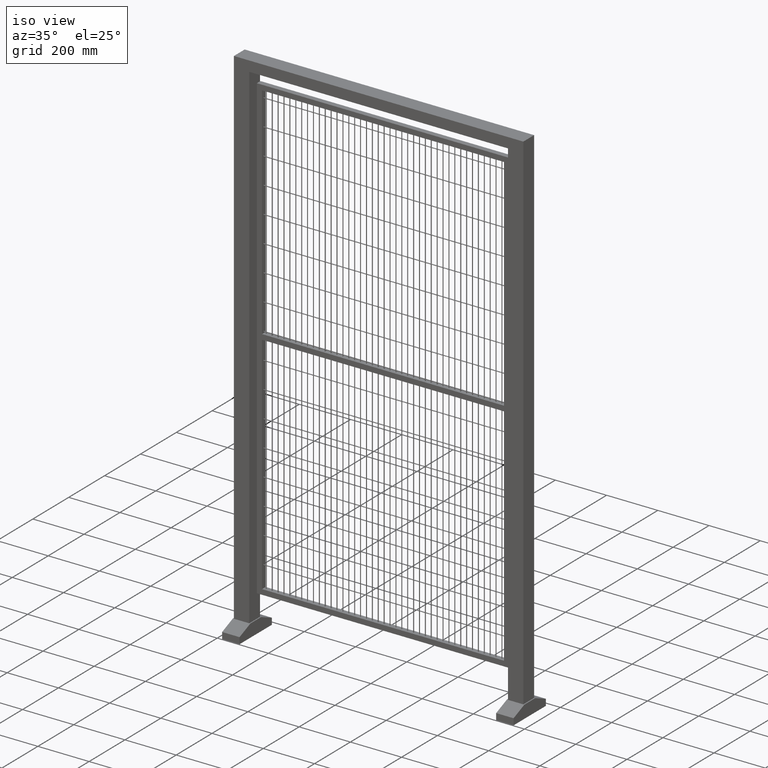
[diagram: clean part render]
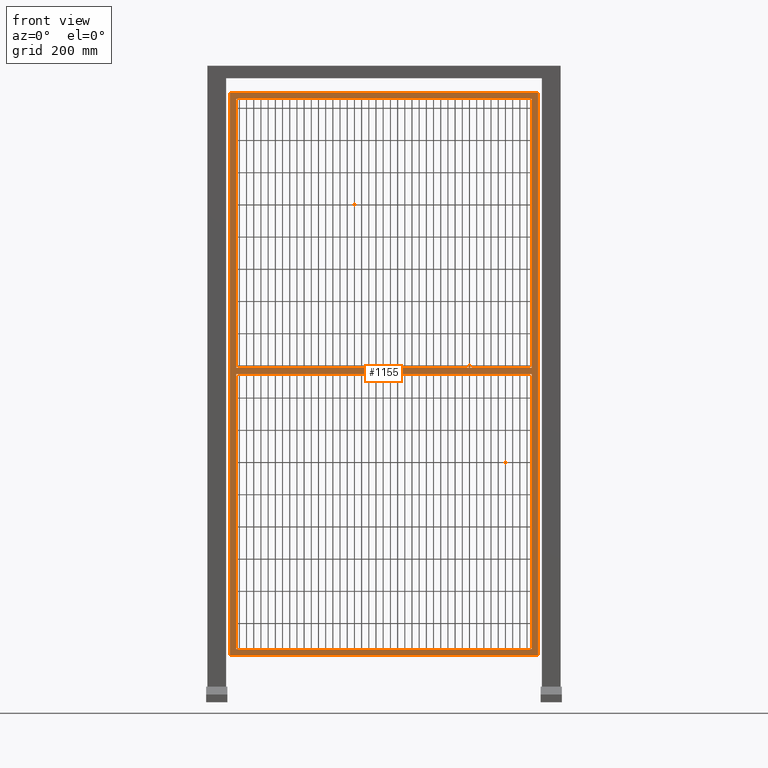
[diagram: tour spotlight — one face highlighted and labeled with its STEP entity id]
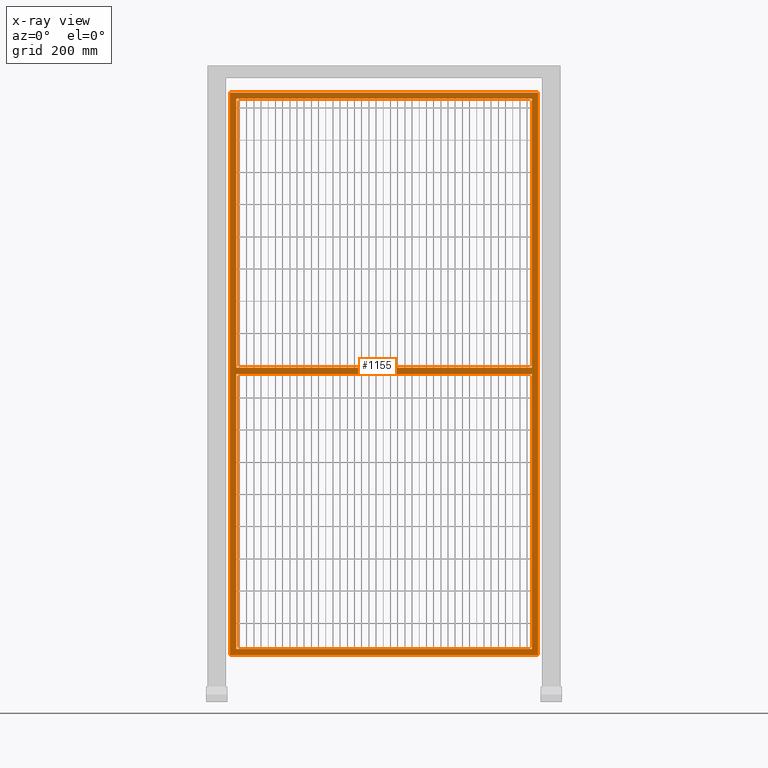
[diagram: x-ray of the same camera — body ghosted, this tour face saturated]
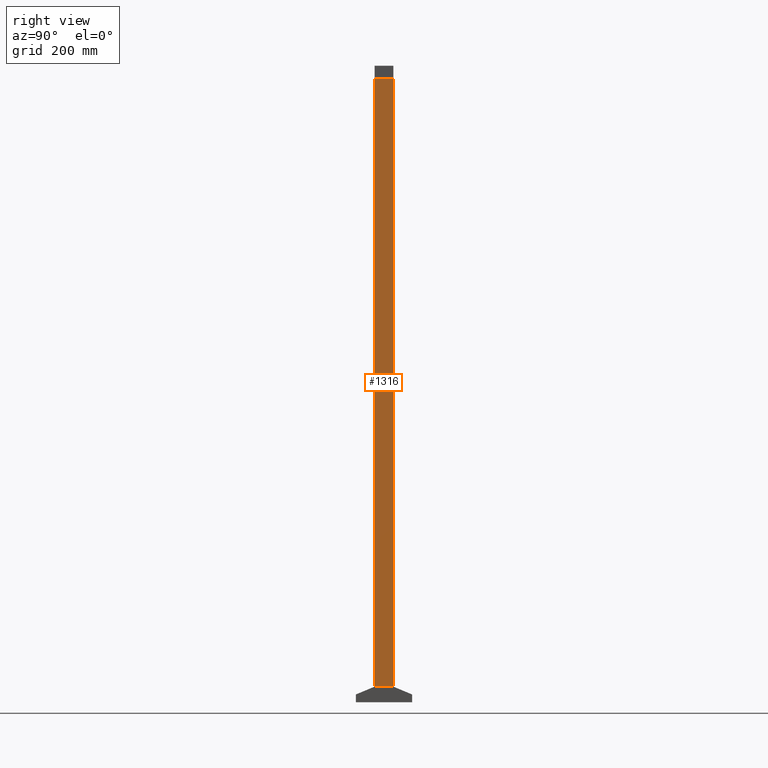
[diagram: tour spotlight — one face highlighted and labeled with its STEP entity id]
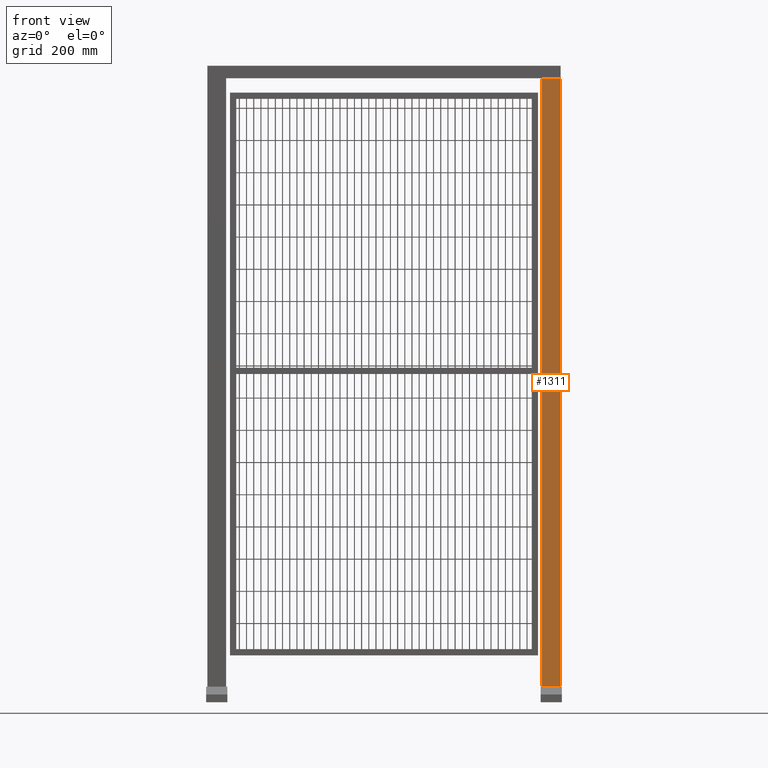
[diagram: tour spotlight — one face highlighted and labeled with its STEP entity id]
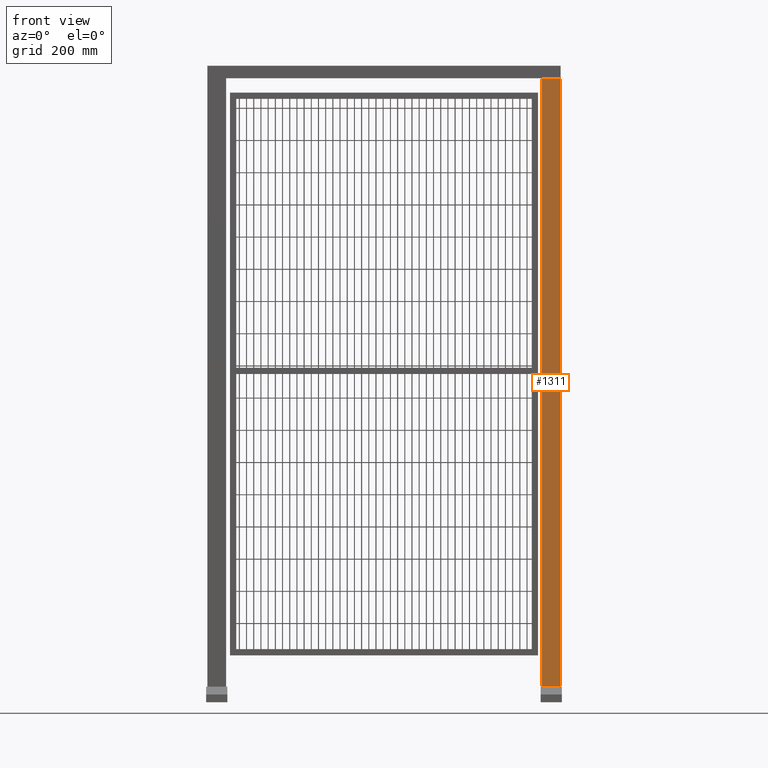
[diagram: tour spotlight — one face highlighted and labeled with its STEP entity id]
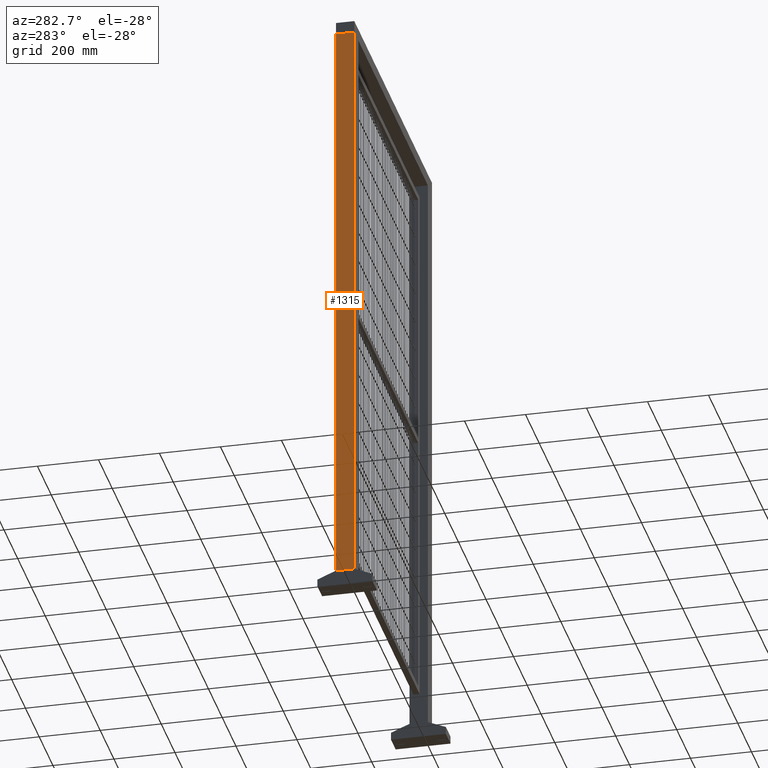
[diagram: tour spotlight — one face highlighted and labeled with its STEP entity id]
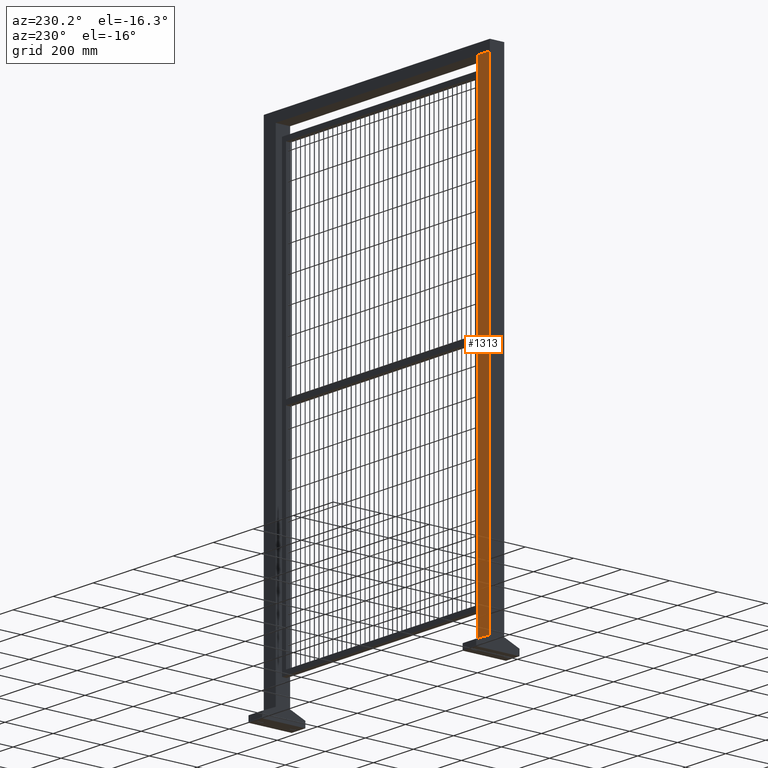
[diagram: tour spotlight — one face highlighted and labeled with its STEP entity id]
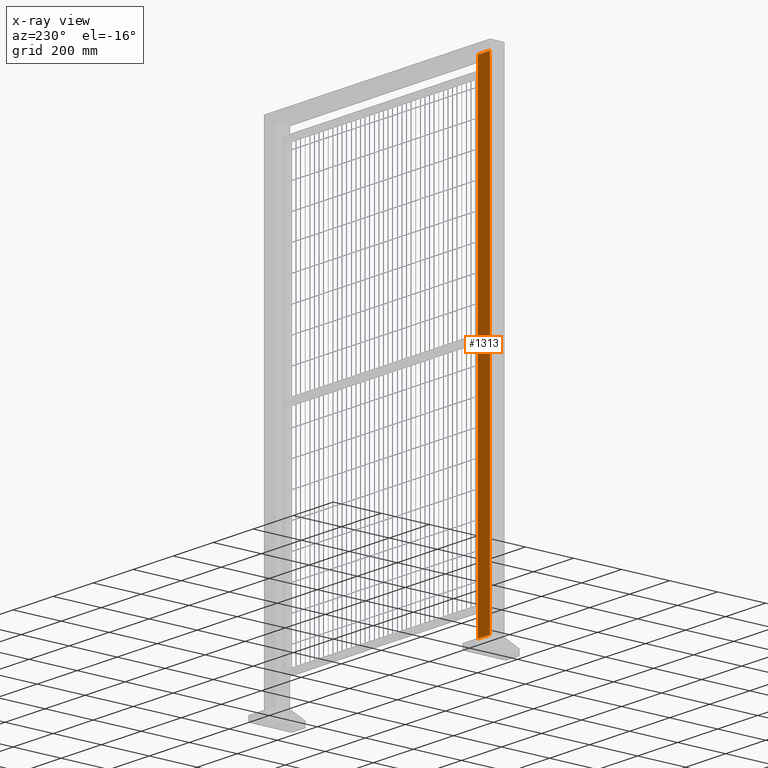
[diagram: x-ray of the same camera — body ghosted, this tour face saturated]
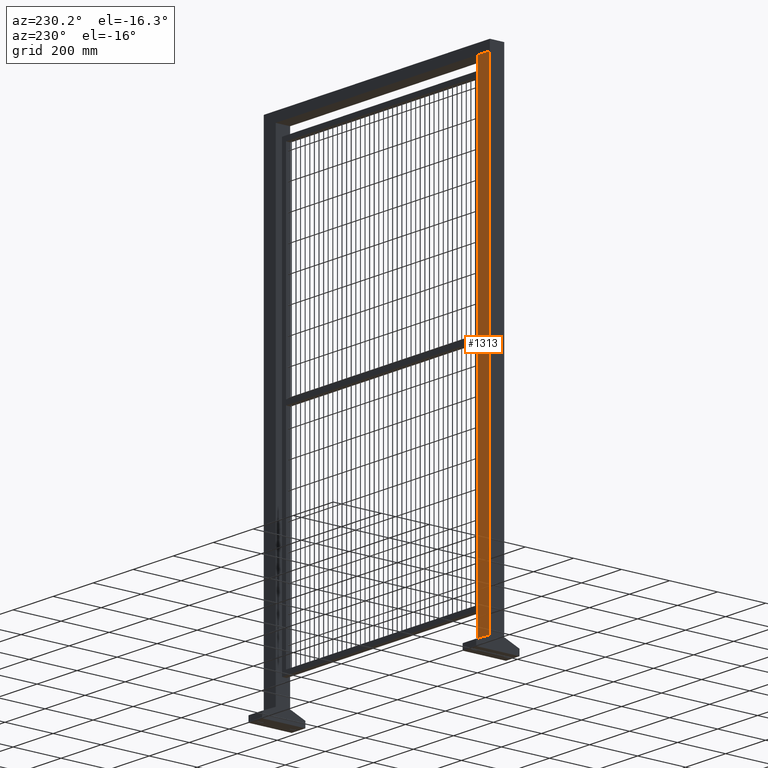
[diagram: tour spotlight — one face highlighted and labeled with its STEP entity id]
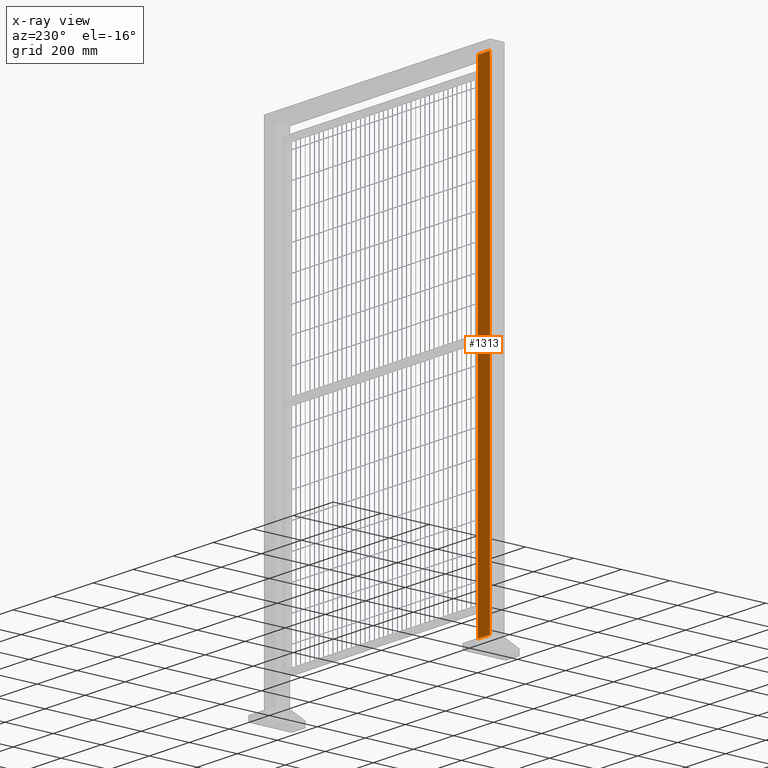
[diagram: x-ray of the same camera — body ghosted, this tour face saturated]
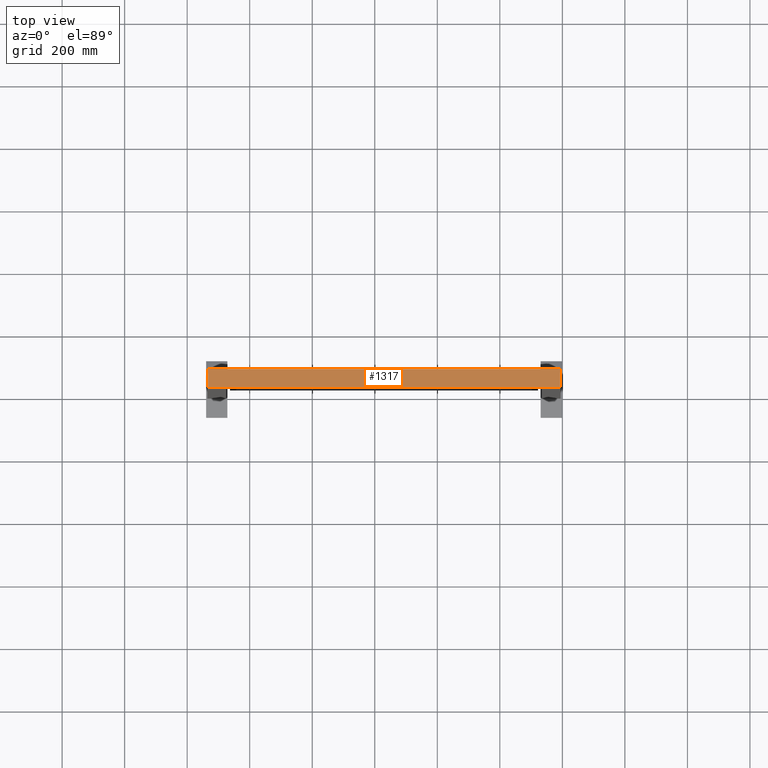
[diagram: tour spotlight — one face highlighted and labeled with its STEP entity id]
A machine part: a face-by-face anatomy tour. The part has 240 B-rep faces; the first image is the clean iso view, then the 8 largest visible faces are spotlighted one at a time (largest first), each with its STEP entity span.

Face 1 — front view, entity #1155. An x-ray twin of the same camera follows (body ghosted, this face saturated) — the face is partly hidden behind the body. In plain terms, the highlighted planar face has unit normal (0, -1, 0).
Definition (entity closure, byte-faithful):
#74=LINE('',#4026,#168);
#78=LINE('',#4035,#172);
#84=LINE('',#4058,#178);
#87=LINE('',#4066,#181);
#89=LINE('',#4073,#183);
#92=LINE('',#4079,#186);
#96=LINE('',#4087,#190);
#100=LINE('',#4095,#194);
#103=LINE('',#4101,#197);
#105=LINE('',#4104,#199);
#106=LINE('',#4106,#200);
#107=LINE('',#4107,#201);
#168=VECTOR('',#3271,1.);
#172=VECTOR('',#3277,1.);
#178=VECTOR('',#3297,1.);
#181=VECTOR('',#3304,1.);
#183=VECTOR('',#3310,1.);
#186=VECTOR('',#3315,1.);
#190=VECTOR('',#3321,1.);
#194=VECTOR('',#3327,1.);
#197=VECTOR('',#3332,1.);
#199=VECTOR('',#3336,1.);
#200=VECTOR('',#3339,1.);
#201=VECTOR('',#3340,1.);
#840=PLANE('',#2879);
#1155=ADVANCED_FACE('',(#1421,#1422,#1423),#840,.T.);
#1421=FACE_BOUND('',#1594,.T.);
#1422=FACE_BOUND('',#1595,.T.);
#1423=FACE_BOUND('',#1596,.T.);
#1594=EDGE_LOOP('',(#1914,#1915,#1916,#1917));
#1595=EDGE_LOOP('',(#1918,#1919,#1920,#1921));
#1596=EDGE_LOOP('',(#1922,#1923,#1924,#1925));
#1914=ORIENTED_EDGE('',*,*,#2512,.F.);
#1915=ORIENTED_EDGE('',*,*,#2474,.F.);
#1916=ORIENTED_EDGE('',*,*,#2488,.F.);
#1917=ORIENTED_EDGE('',*,*,#2498,.F.);
#1918=ORIENTED_EDGE('',*,*,#2502,.T.);
#1919=ORIENTED_EDGE('',*,*,#2506,.T.);
#1920=ORIENTED_EDGE('',*,*,#2509,.T.);
#1921=ORIENTED_EDGE('',*,*,#2511,.T.);
#1922=ORIENTED_EDGE('',*,*,#2495,.F.);
#1923=ORIENTED_EDGE('',*,*,#2513,.F.);
#1924=ORIENTED_EDGE('',*,*,#2478,.F.);
#1925=ORIENTED_EDGE('',*,*,#2492,.F.);
#2286=VERTEX_POINT('',#4027);
#2287=VERTEX_POINT('',#4028);
#2290=VERTEX_POINT('',#4036);
#2291=VERTEX_POINT('',#4037);
#2299=VERTEX_POINT('',#4057);
#2302=VERTEX_POINT('',#4065);
#2304=VERTEX_POINT('',#4071);
#2306=VERTEX_POINT('',#4077);
#2310=VERTEX_POINT('',#4086);
#2311=VERTEX_POINT('',#4088);
#2313=VERTEX_POINT('',#4094);
#2315=VERTEX_POINT('',#4100);
#2474=EDGE_CURVE('',#2286,#2287,#74,.T.);
#2478=EDGE_CURVE('',#2290,#2291,#78,.T.);
#2488=EDGE_CURVE('',#2299,#2286,#84,.T.);
#2492=EDGE_CURVE('',#2302,#2290,#87,.T.);
#2495=EDGE_CURVE('',#2304,#2302,#89,.T.);
#2498=EDGE_CURVE('',#2306,#2299,#92,.T.);
#2502=EDGE_CURVE('',#2311,#2310,#96,.T.);
#2506=EDGE_CURVE('',#2310,#2313,#100,.T.);
#2509=EDGE_CURVE('',#2313,#2315,#103,.T.);
#2511=EDGE_CURVE('',#2315,#2311,#105,.T.);
#2512=EDGE_CURVE('',#2287,#2306,#106,.T.);
#2513=EDGE_CURVE('',#2291,#2304,#107,.T.);
#2879=AXIS2_PLACEMENT_3D('',#4108,#3341,#3342);
#3271=DIRECTION('',(-6.30808536718839E-17,0.,1.));
#3277=DIRECTION('',(-6.30808536718839E-17,0.,-1.));
#3297=DIRECTION('',(1.,0.,-2.34967835899504E-16));
#3304=DIRECTION('',(-1.,0.,0.));
#3310=DIRECTION('',(-6.30808536718839E-17,0.,1.));
#3315=DIRECTION('',(-6.30808536718839E-17,0.,-1.));
#3321=DIRECTION('',(0.,0.,1.));
#3327=DIRECTION('',(-1.,0.,0.));
#3332=DIRECTION('',(0.,0.,-1.));
#3336=DIRECTION('',(1.,0.,0.));
#3339=DIRECTION('',(-1.,0.,0.));
#3340=DIRECTION('',(1.,0.,0.));
#3341=DIRECTION('',(0.,-1.,0.));
#3342=DIRECTION('',(0.,0.,-1.));
#4026=CARTESIAN_POINT('',(472.5,-10.,-880.));
#4027=CARTESIAN_POINT('',(472.5,-10.,-880.));
#4028=CARTESIAN_POINT('',(472.5,-10.,4.38892109655965E-15));
#4035=CARTESIAN_POINT('',(-472.5,-10.,880.));
#4036=CARTESIAN_POINT('',(-472.5,-10.,880.));
#4037=CARTESIAN_POINT('',(-472.5,-10.,20.));
#4057=CARTESIAN_POINT('',(-472.5,-10.,-880.));
#4058=CARTESIAN_POINT('',(-472.5,-10.,-880.));
#4065=CARTESIAN_POINT('',(472.5,-10.,880.));
#4066=CARTESIAN_POINT('',(472.5,-10.,880.));
#4071=CARTESIAN_POINT('',(472.5,-10.,20.));
#4073=CARTESIAN_POINT('',(472.5,-10.,-880.));
#4077=CARTESIAN_POINT('',(-472.5,-10.,4.38892109655965E-15));
#4079=CARTESIAN_POINT('',(-472.5,-10.,880.));
#4086=CARTESIAN_POINT('',(492.5,-10.,900.));
#4087=CARTESIAN_POINT('',(492.5,-10.,-900.));
#4088=CARTESIAN_POINT('',(492.5,-10.,-900.));
#4094=CARTESIAN_POINT('',(-492.5,-10.,900.));
#4095=CARTESIAN_POINT('',(492.5,-10.,900.));
#4100=CARTESIAN_POINT('',(-492.5,-10.,-900.));
#4101=CARTESIAN_POINT('',(-492.5,-10.,900.));
#4104=CARTESIAN_POINT('',(-492.5,-10.,-900.));
#4106=CARTESIAN_POINT('',(472.5,-10.,4.38892109655965E-15));
#4107=CARTESIAN_POINT('',(-472.5,-10.,20.));
#4108=CARTESIAN_POINT('',(0.,-10.,0.));

Face 2 — right view, entity #1316. In plain terms, the highlighted planar face has unit normal (1, 0, 0).
Definition (entity closure, byte-faithful):
#144=LINE('',#4516,#238);
#148=LINE('',#4525,#242);
#151=LINE('',#4531,#245);
#154=LINE('',#4537,#248);
#238=VECTOR('',#3885,1.);
#242=VECTOR('',#3891,1.);
#245=VECTOR('',#3896,1.);
#248=VECTOR('',#3901,1.);
#951=PLANE('',#3138);
#1100=FACE_OUTER_BOUND('',#1811,.T.);
#1316=ADVANCED_FACE('',(#1100),#951,.T.);
#1811=EDGE_LOOP('',(#2234,#2235,#2236,#2237));
#2234=ORIENTED_EDGE('',*,*,#2648,.T.);
#2235=ORIENTED_EDGE('',*,*,#2652,.T.);
#2236=ORIENTED_EDGE('',*,*,#2655,.T.);
#2237=ORIENTED_EDGE('',*,*,#2658,.T.);
#2434=VERTEX_POINT('',#4517);
#2435=VERTEX_POINT('',#4518);
#2438=VERTEX_POINT('',#4526);
#2440=VERTEX_POINT('',#4532);
#2648=EDGE_CURVE('',#2434,#2435,#144,.T.);
#2652=EDGE_CURVE('',#2435,#2438,#148,.T.);
#2655=EDGE_CURVE('',#2438,#2440,#151,.T.);
#2658=EDGE_CURVE('',#2440,#2434,#154,.T.);
#3138=AXIS2_PLACEMENT_3D('',#4541,#3907,#3908);
#3885=DIRECTION('',(0.,0.,-1.));
#3891=DIRECTION('',(-1.,0.,0.));
#3896=DIRECTION('',(1.78286071528963E-18,0.,1.));
#3901=DIRECTION('',(1.,0.,0.));
#3907=DIRECTION('',(0.,1.,0.));
#3908=DIRECTION('',(0.,0.,1.));
#4516=CARTESIAN_POINT('',(30.,30.,1996.));
#4517=CARTESIAN_POINT('',(30.,30.,1996.));
#4518=CARTESIAN_POINT('',(30.,30.,50.));
#4525=CARTESIAN_POINT('',(30.,30.,50.));
#4526=CARTESIAN_POINT('',(-30.,30.,50.));
#4531=CARTESIAN_POINT('',(-30.,30.,50.));
#4532=CARTESIAN_POINT('',(-30.,30.,1996.));
#4537=CARTESIAN_POINT('',(-30.,30.,1996.));
#4541=CARTESIAN_POINT('',(0.,30.,0.));

Face 3 — front view, entity #1311. In plain terms, the highlighted planar face has unit normal (-0, -1, -0).
Definition (entity closure, byte-faithful):
#144=LINE('',#4516,#238);
#145=LINE('',#4519,#239);
#146=LINE('',#4521,#240);
#147=LINE('',#4523,#241);
#238=VECTOR('',#3885,1.);
#239=VECTOR('',#3886,1.);
#240=VECTOR('',#3887,1.);
#241=VECTOR('',#3888,1.);
#946=PLANE('',#3133);
#1095=FACE_OUTER_BOUND('',#1806,.T.);
#1311=ADVANCED_FACE('',(#1095),#946,.T.);
#1806=EDGE_LOOP('',(#2214,#2215,#2216,#2217));
#2214=ORIENTED_EDGE('',*,*,#2648,.F.);
#2215=ORIENTED_EDGE('',*,*,#2649,.F.);
#2216=ORIENTED_EDGE('',*,*,#2650,.T.);
#2217=ORIENTED_EDGE('',*,*,#2651,.T.);
#2434=VERTEX_POINT('',#4517);
#2435=VERTEX_POINT('',#4518);
#2436=VERTEX_POINT('',#4520);
#2437=VERTEX_POINT('',#4522);
#2648=EDGE_CURVE('',#2434,#2435,#144,.T.);
#2649=EDGE_CURVE('',#2436,#2434,#145,.T.);
#2650=EDGE_CURVE('',#2436,#2437,#146,.T.);
#2651=EDGE_CURVE('',#2437,#2435,#147,.T.);
#3133=AXIS2_PLACEMENT_3D('',#4524,#3889,#3890);
#3885=DIRECTION('',(0.,0.,-1.));
#3886=DIRECTION('',(0.,1.,0.));
#3887=DIRECTION('',(0.,0.,-1.));
#3888=DIRECTION('',(0.,1.,0.));
#3889=DIRECTION('',(1.,0.,0.));
#3890=DIRECTION('',(0.,0.,-1.));
#4516=CARTESIAN_POINT('',(30.,30.,1996.));
#4517=CARTESIAN_POINT('',(30.,30.,1996.));
#4518=CARTESIAN_POINT('',(30.,30.,50.));
#4519=CARTESIAN_POINT('',(30.,-30.,1996.));
#4520=CARTESIAN_POINT('',(30.,-30.,1996.));
#4521=CARTESIAN_POINT('',(30.,-30.,1996.));
#4522=CARTESIAN_POINT('',(30.,-30.,50.));
#4523=CARTESIAN_POINT('',(30.,-30.,50.));
#4524=CARTESIAN_POINT('',(30.,-30.,1996.));

Face 4 — front view, entity #1311. In plain terms, the highlighted planar face has unit normal (0, -1, 0).
Definition (entity closure, byte-faithful):
#144=LINE('',#4516,#238);
#145=LINE('',#4519,#239);
#146=LINE('',#4521,#240);
#147=LINE('',#4523,#241);
#238=VECTOR('',#3885,1.);
#239=VECTOR('',#3886,1.);
#240=VECTOR('',#3887,1.);
#241=VECTOR('',#3888,1.);
#946=PLANE('',#3133);
#1095=FACE_OUTER_BOUND('',#1806,.T.);
#1311=ADVANCED_FACE('',(#1095),#946,.T.);
#1806=EDGE_LOOP('',(#2214,#2215,#2216,#2217));
#2214=ORIENTED_EDGE('',*,*,#2648,.F.);
#2215=ORIENTED_EDGE('',*,*,#2649,.F.);
#2216=ORIENTED_EDGE('',*,*,#2650,.T.);
#2217=ORIENTED_EDGE('',*,*,#2651,.T.);
#2434=VERTEX_POINT('',#4517);
#2435=VERTEX_POINT('',#4518);
#2436=VERTEX_POINT('',#4520);
#2437=VERTEX_POINT('',#4522);
#2648=EDGE_CURVE('',#2434,#2435,#144,.T.);
#2649=EDGE_CURVE('',#2436,#2434,#145,.T.);
#2650=EDGE_CURVE('',#2436,#2437,#146,.T.);
#2651=EDGE_CURVE('',#2437,#2435,#147,.T.);
#3133=AXIS2_PLACEMENT_3D('',#4524,#3889,#3890);
#3885=DIRECTION('',(0.,0.,-1.));
#3886=DIRECTION('',(0.,1.,0.));
#3887=DIRECTION('',(0.,0.,-1.));
#3888=DIRECTION('',(0.,1.,0.));
#3889=DIRECTION('',(1.,0.,0.));
#3890=DIRECTION('',(0.,0.,-1.));
#4516=CARTESIAN_POINT('',(30.,30.,1996.));
#4517=CARTESIAN_POINT('',(30.,30.,1996.));
#4518=CARTESIAN_POINT('',(30.,30.,50.));
#4519=CARTESIAN_POINT('',(30.,-30.,1996.));
#4520=CARTESIAN_POINT('',(30.,-30.,1996.));
#4521=CARTESIAN_POINT('',(30.,-30.,1996.));
#4522=CARTESIAN_POINT('',(30.,-30.,50.));
#4523=CARTESIAN_POINT('',(30.,-30.,50.));
#4524=CARTESIAN_POINT('',(30.,-30.,1996.));

Face 5 — auxiliary view, entity #1315. In plain terms, the highlighted planar face has unit normal (1, -0, 0).
Definition (entity closure, byte-faithful):
#146=LINE('',#4521,#240);
#149=LINE('',#4527,#243);
#152=LINE('',#4533,#246);
#155=LINE('',#4538,#249);
#240=VECTOR('',#3887,1.);
#243=VECTOR('',#3892,1.);
#246=VECTOR('',#3897,1.);
#249=VECTOR('',#3902,1.);
#950=PLANE('',#3137);
#1099=FACE_OUTER_BOUND('',#1810,.T.);
#1315=ADVANCED_FACE('',(#1099),#950,.F.);
#1810=EDGE_LOOP('',(#2230,#2231,#2232,#2233));
#2230=ORIENTED_EDGE('',*,*,#2650,.F.);
#2231=ORIENTED_EDGE('',*,*,#2659,.F.);
#2232=ORIENTED_EDGE('',*,*,#2656,.F.);
#2233=ORIENTED_EDGE('',*,*,#2653,.F.);
#2436=VERTEX_POINT('',#4520);
#2437=VERTEX_POINT('',#4522);
#2439=VERTEX_POINT('',#4528);
#2441=VERTEX_POINT('',#4534);
#2650=EDGE_CURVE('',#2436,#2437,#146,.T.);
#2653=EDGE_CURVE('',#2437,#2439,#149,.T.);
#2656=EDGE_CURVE('',#2439,#2441,#152,.T.);
#2659=EDGE_CURVE('',#2441,#2436,#155,.T.);
#3137=AXIS2_PLACEMENT_3D('',#4540,#3905,#3906);
#3887=DIRECTION('',(0.,0.,-1.));
#3892=DIRECTION('',(-1.,0.,0.));
#3897=DIRECTION('',(1.78286071528963E-18,0.,1.));
#3902=DIRECTION('',(1.,0.,0.));
#3905=DIRECTION('',(0.,1.,0.));
#3906=DIRECTION('',(0.,0.,1.));
#4520=CARTESIAN_POINT('',(30.,-30.,1996.));
#4521=CARTESIAN_POINT('',(30.,-30.,1996.));
#4522=CARTESIAN_POINT('',(30.,-30.,50.));
#4527=CARTESIAN_POINT('',(30.,-30.,50.));
#4528=CARTESIAN_POINT('',(-30.,-30.,50.));
#4533=CARTESIAN_POINT('',(-30.,-30.,50.));
#4534=CARTESIAN_POINT('',(-30.,-30.,1996.));
#4538=CARTESIAN_POINT('',(-30.,-30.,1996.));
#4540=CARTESIAN_POINT('',(0.,-30.,0.));

Face 6 — auxiliary view, entity #1313. An x-ray twin of the same camera follows (body ghosted, this face saturated) — the face is partly hidden behind the body. In plain terms, the highlighted planar face has unit normal (0, 1, 0).
Definition (entity closure, byte-faithful):
#150=LINE('',#4529,#244);
#151=LINE('',#4531,#245);
#152=LINE('',#4533,#246);
#153=LINE('',#4535,#247);
#244=VECTOR('',#3893,1.);
#245=VECTOR('',#3896,1.);
#246=VECTOR('',#3897,1.);
#247=VECTOR('',#3898,1.);
#948=PLANE('',#3135);
#1097=FACE_OUTER_BOUND('',#1808,.T.);
#1313=ADVANCED_FACE('',(#1097),#948,.T.);
#1808=EDGE_LOOP('',(#2222,#2223,#2224,#2225));
#2222=ORIENTED_EDGE('',*,*,#2655,.F.);
#2223=ORIENTED_EDGE('',*,*,#2654,.F.);
#2224=ORIENTED_EDGE('',*,*,#2656,.T.);
#2225=ORIENTED_EDGE('',*,*,#2657,.T.);
#2438=VERTEX_POINT('',#4526);
#2439=VERTEX_POINT('',#4528);
#2440=VERTEX_POINT('',#4532);
#2441=VERTEX_POINT('',#4534);
#2654=EDGE_CURVE('',#2439,#2438,#150,.T.);
#2655=EDGE_CURVE('',#2438,#2440,#151,.T.);
#2656=EDGE_CURVE('',#2439,#2441,#152,.T.);
#2657=EDGE_CURVE('',#2441,#2440,#153,.T.);
#3135=AXIS2_PLACEMENT_3D('',#4536,#3899,#3900);
#3893=DIRECTION('',(0.,1.,0.));
#3896=DIRECTION('',(1.78286071528963E-18,0.,1.));
#3897=DIRECTION('',(1.78286071528963E-18,0.,1.));
#3898=DIRECTION('',(0.,1.,0.));
#3899=DIRECTION('',(-1.,0.,1.78286071528963E-18));
#3900=DIRECTION('',(3.46944695195361E-18,0.,1.));
#4526=CARTESIAN_POINT('',(-30.,30.,50.));
#4528=CARTESIAN_POINT('',(-30.,-30.,50.));
#4529=CARTESIAN_POINT('',(-30.,-30.,50.));
#4531=CARTESIAN_POINT('',(-30.,30.,50.));
#4532=CARTESIAN_POINT('',(-30.,30.,1996.));
#4533=CARTESIAN_POINT('',(-30.,-30.,50.));
#4534=CARTESIAN_POINT('',(-30.,-30.,1996.));
#4535=CARTESIAN_POINT('',(-30.,-30.,1996.));
#4536=CARTESIAN_POINT('',(-30.,-30.,50.));

Face 7 — auxiliary view, entity #1313. An x-ray twin of the same camera follows (body ghosted, this face saturated) — the face is partly hidden behind the body. In plain terms, the highlighted planar face has unit normal (0, 1, 0).
Definition (entity closure, byte-faithful):
#150=LINE('',#4529,#244);
#151=LINE('',#4531,#245);
#152=LINE('',#4533,#246);
#153=LINE('',#4535,#247);
#244=VECTOR('',#3893,1.);
#245=VECTOR('',#3896,1.);
#246=VECTOR('',#3897,1.);
#247=VECTOR('',#3898,1.);
#948=PLANE('',#3135);
#1097=FACE_OUTER_BOUND('',#1808,.T.);
#1313=ADVANCED_FACE('',(#1097),#948,.T.);
#1808=EDGE_LOOP('',(#2222,#2223,#2224,#2225));
#2222=ORIENTED_EDGE('',*,*,#2655,.F.);
#2223=ORIENTED_EDGE('',*,*,#2654,.F.);
#2224=ORIENTED_EDGE('',*,*,#2656,.T.);
#2225=ORIENTED_EDGE('',*,*,#2657,.T.);
#2438=VERTEX_POINT('',#4526);
#2439=VERTEX_POINT('',#4528);
#2440=VERTEX_POINT('',#4532);
#2441=VERTEX_POINT('',#4534);
#2654=EDGE_CURVE('',#2439,#2438,#150,.T.);
#2655=EDGE_CURVE('',#2438,#2440,#151,.T.);
#2656=EDGE_CURVE('',#2439,#2441,#152,.T.);
#2657=EDGE_CURVE('',#2441,#2440,#153,.T.);
#3135=AXIS2_PLACEMENT_3D('',#4536,#3899,#3900);
#3893=DIRECTION('',(0.,1.,0.));
#3896=DIRECTION('',(1.78286071528963E-18,0.,1.));
#3897=DIRECTION('',(1.78286071528963E-18,0.,1.));
#3898=DIRECTION('',(0.,1.,0.));
#3899=DIRECTION('',(-1.,0.,1.78286071528963E-18));
#3900=DIRECTION('',(3.46944695195361E-18,0.,1.));
#4526=CARTESIAN_POINT('',(-30.,30.,50.));
#4528=CARTESIAN_POINT('',(-30.,-30.,50.));
#4529=CARTESIAN_POINT('',(-30.,-30.,50.));
#4531=CARTESIAN_POINT('',(-30.,30.,50.));
#4532=CARTESIAN_POINT('',(-30.,30.,1996.));
#4533=CARTESIAN_POINT('',(-30.,-30.,50.));
#4534=CARTESIAN_POINT('',(-30.,-30.,1996.));
#4535=CARTESIAN_POINT('',(-30.,-30.,1996.));
#4536=CARTESIAN_POINT('',(-30.,-30.,50.));

Face 8 — top view, entity #1317. In plain terms, the highlighted planar face has unit normal (0, 0, -1).
Definition (entity closure, byte-faithful):
#156=LINE('',#4542,#250);
#157=LINE('',#4545,#251);
#158=LINE('',#4547,#252);
#159=LINE('',#4549,#253);
#250=VECTOR('',#3909,1.);
#251=VECTOR('',#3910,1.);
#252=VECTOR('',#3911,1.);
#253=VECTOR('',#3912,1.);
#952=PLANE('',#3139);
#1101=FACE_OUTER_BOUND('',#1812,.T.);
#1317=ADVANCED_FACE('',(#1101),#952,.F.);
#1812=EDGE_LOOP('',(#2238,#2239,#2240,#2241));
#2238=ORIENTED_EDGE('',*,*,#2660,.T.);
#2239=ORIENTED_EDGE('',*,*,#2661,.F.);
#2240=ORIENTED_EDGE('',*,*,#2662,.F.);
#2241=ORIENTED_EDGE('',*,*,#2663,.T.);
#2442=VERTEX_POINT('',#4543);
#2443=VERTEX_POINT('',#4544);
#2444=VERTEX_POINT('',#4546);
#2445=VERTEX_POINT('',#4548);
#2660=EDGE_CURVE('',#2442,#2443,#156,.T.);
#2661=EDGE_CURVE('',#2444,#2443,#157,.T.);
#2662=EDGE_CURVE('',#2445,#2444,#158,.T.);
#2663=EDGE_CURVE('',#2445,#2442,#159,.T.);
#3139=AXIS2_PLACEMENT_3D('',#4550,#3913,#3914);
#3909=DIRECTION('',(-1.,0.,0.));
#3910=DIRECTION('',(0.,1.,0.));
#3911=DIRECTION('',(-1.,0.,0.));
#3912=DIRECTION('',(0.,1.,0.));
#3913=DIRECTION('',(0.,0.,-1.));
#3914=DIRECTION('',(-1.,0.,0.));
#4542=CARTESIAN_POINT('',(564.999999999993,30.,40.));
#4543=CARTESIAN_POINT('',(564.999999999993,30.,40.));
#4544=CARTESIAN_POINT('',(-564.999999999993,30.,40.));
#4545=CARTESIAN_POINT('',(-564.999999999993,-30.,40.));
#4546=CARTESIAN_POINT('',(-564.999999999993,-30.,40.));
#4547=CARTESIAN_POINT('',(564.999999999993,-30.,40.));
#4548=CARTESIAN_POINT('',(564.999999999993,-30.,40.));
#4549=CARTESIAN_POINT('',(564.999999999993,-30.,40.));
#4550=CARTESIAN_POINT('',(564.999999999993,-30.,40.));